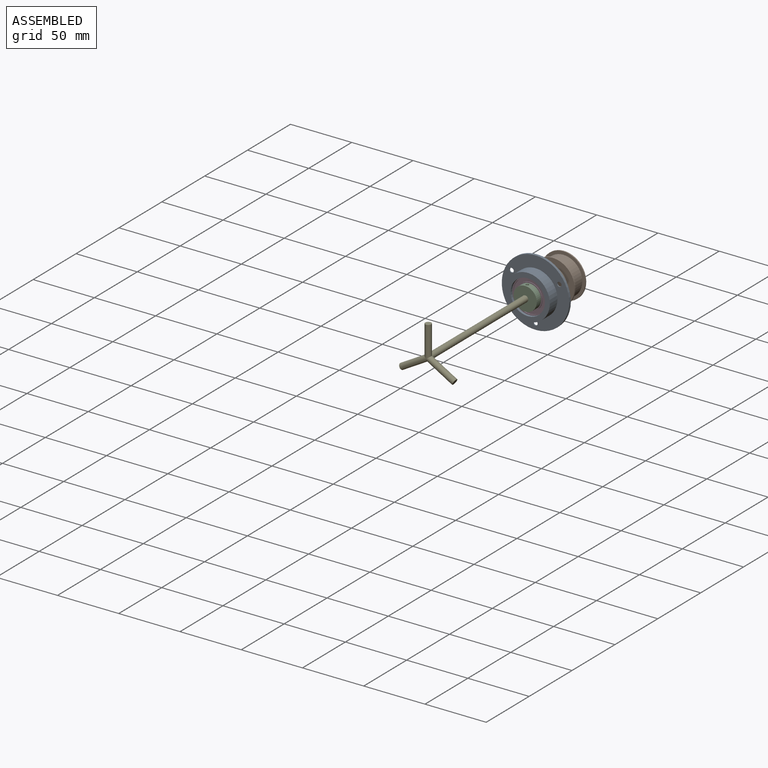
[diagram: assembled view]
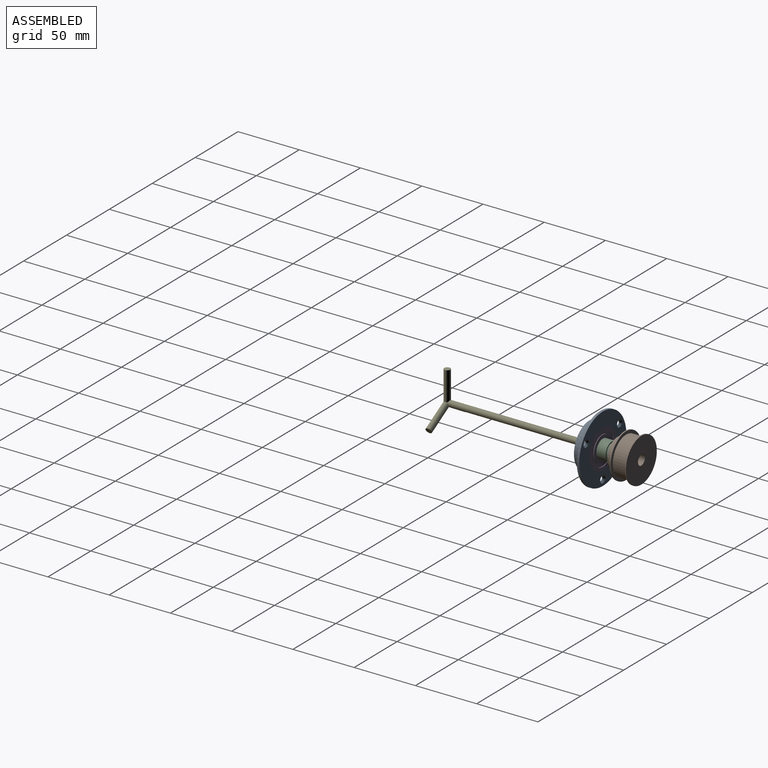
[diagram: assembled view, second angle]
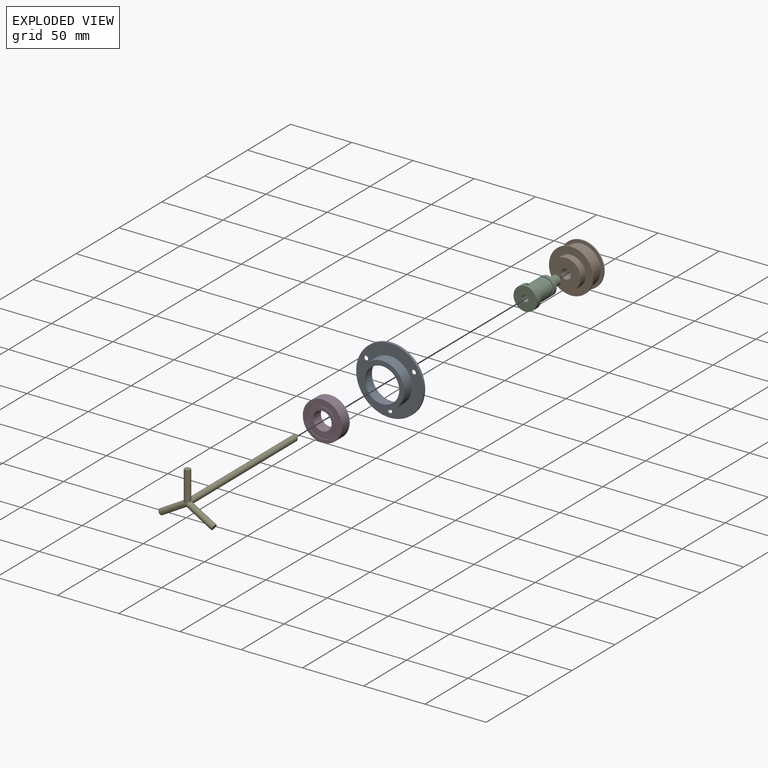
[diagram: exploded view]
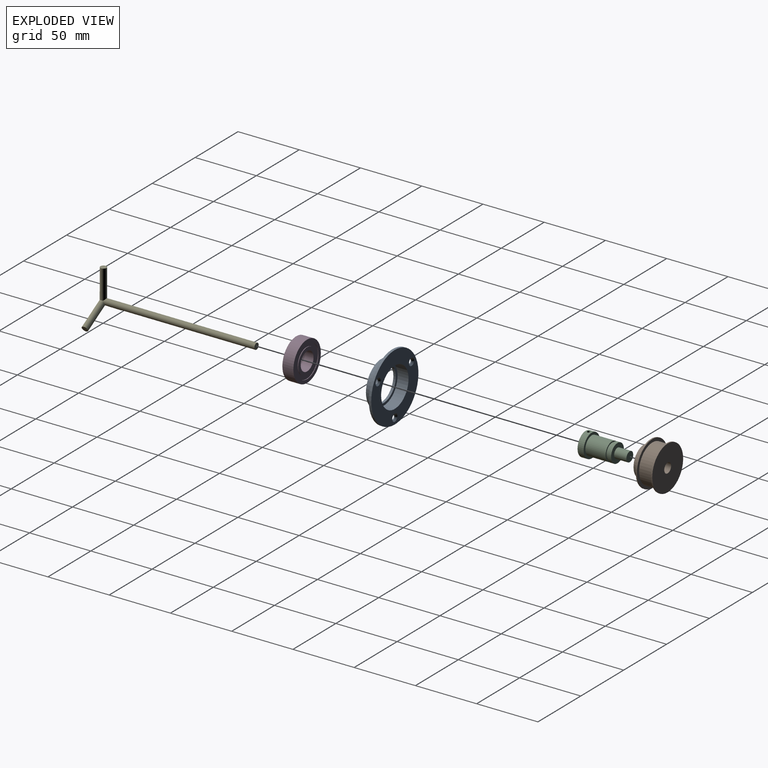
[diagram: exploded view, second angle]
ASSEMBLY  parts=5 mates=4
PART A: 14 faces, bbox 55x55x11 mm
  f0: cylinder r=16mm len=32mm, axis (0,0,1), area 904.8mm2, adj f3,f5
  f1: cylinder r=18mm len=36mm, axis (0,0,1), area 1017.9mm2, adj f4,f7
  f2: cylinder r=27.5mm len=55mm, axis (0,0,-1), area 345.6mm2, adj f3,f4
  f3: plane 55x55mm, normal (0,0,1), area 1486.8mm2, adj f0,f2,f9,f11,f13
  f4: plane 55x55mm, normal (0,0,-1), area 1329.1mm2, adj f1,f2,f8,f10,f12
  f5: plane 32x32mm, normal (0,0,1), area 188.5mm2, adj f0,f6
  f6: cylinder r=14mm len=28mm, axis (0,0,1), area 175.9mm2, adj f5,f7
  f7: plane 36x36mm, normal (0,0,-1), area 402.1mm2, adj f1,f6
  f8: cylinder r=1.75mm len=3.5mm, axis (0,0,1), area 8.2mm2, adj f4,f9
  f9: cone r=1.75mm half-angle=45deg, axis (0,0,1), area 26.4mm2, adj f3,f8
  f10: cylinder r=1.75mm len=3.5mm, axis (0,0,1), area 8.2mm2, adj f4,f11
  f11: cone r=1.75mm half-angle=45deg, axis (0,0,1), area 26.4mm2, adj f3,f10
  f12: cylinder r=1.75mm len=3.5mm, axis (0,0,1), area 8.2mm2, adj f4,f13
  f13: cone r=1.75mm half-angle=45deg, axis (0,0,1), area 26.4mm2, adj f3,f12
PART B: 10 faces, bbox 36x36x19.5 mm
  f0: cylinder r=15.5mm len=31mm, axis (0,0,-1), area 1120mm2, adj f3,f6
  f1: cylinder r=18mm len=36mm, axis (0,0,-1), area 113.1mm2, adj f2,f3
  f2: plane 36x36mm, normal (0,0,1), area 967.6mm2, adj f1,f9
  f3: plane 36x36mm, normal (0,0,-1), area 263.1mm2, adj f0,f1
  f4: cylinder r=18mm len=36mm, axis (0,0,1), area 113.1mm2, adj f5,f6
  f5: plane 36x36mm, normal (0,0,-1), area 565.5mm2, adj f4,f7
  f6: plane 36x36mm, normal (0,0,1), area 263.1mm2, adj f0,f4
  f7: cylinder r=12mm len=24mm, axis (0,0,1), area 452.4mm2, adj f5,f8
  f8: plane 24x24mm, normal (0,0,-1), area 402.1mm2, adj f7,f9
  f9: cylinder r=4mm len=19.5mm, axis (0,0,-1), area 490.1mm2, adj f2,f8
PART C: 14 faces, bbox 19x19x36 mm
  f0: cylinder r=7.5mm len=16.5mm, axis (0,0,-1), area 777.5mm2, adj f3,f9
  f1: cylinder r=9.5mm len=19mm, axis (0,0,-1), area 293.5mm2, adj f3,f4,f6
  f2: cylinder r=2.5mm len=12mm, axis (0,0,-1), area 183.4mm2, adj f4,f5,f6
  f3: plane 19x19mm, normal (0,0,1), area 106.8mm2, adj f0,f1
  f4: plane 19x19mm, normal (0,0,-1), area 263.9mm2, adj f1,f2
  f5: cone r=0mm half-angle=59deg, axis (0,0,-1), area 22.9mm2, adj f2
  f6: cylinder r=1.25mm len=7.34mm, axis (0,1,0), area 55.9mm2, adj f1,f2
  f7: cylinder r=6.5mm len=13mm, axis (0,0,-1), area 61.3mm2, adj f8,f9
  f8: plane 15x15mm, normal (0,0,-1), area 44mm2, adj f7,f13
  f9: plane 15x15mm, normal (0,0,1), area 44mm2, adj f0,f7
  f10: plane 8x8mm, normal (0,0,1), area 50.3mm2, adj f11
  f11: cylinder r=4mm len=10mm, axis (0,0,-1), area 251.3mm2, adj f10,f12
  f12: plane 15x15mm, normal (0,0,1), area 126.4mm2, adj f11,f13
  f13: cylinder r=7.5mm len=15mm, axis (0,0,-1), area 141.4mm2, adj f8,f12
PART D: 12 faces, bbox 32.4x9.4x32.4 mm
  f0: cylinder r=13.17mm len=26.33mm, axis (0,-1,0), area 41.4mm2, adj f1,f2
  f1: plane 32x32mm, normal (0,1,0), area 259.1mm2, adj f0,f3
  f2: plane 26.64x26.64mm, normal (0,1,0), area 209.4mm2, adj f0,f4
  f3: cylinder r=16mm len=32mm, axis (0,1,0), area 904.8mm2, adj f1,f5
  f4: cylinder r=10.33mm len=20.67mm, axis (0,1,0), area 32.5mm2, adj f2,f6
  f5: plane 32.39x32.39mm, normal (0,-1,0), area 260mm2, adj f3,f7
  f6: plane 20.89x20.89mm, normal (0,1,0), area 158.8mm2, adj f4,f8
  f7: cylinder r=13.17mm len=26.33mm, axis (0,-1,0), area 41.4mm2, adj f5,f9
  f8: cylinder r=7.5mm len=15mm, axis (0,-1,0), area 424.1mm2, adj f6,f10
  f9: plane 26.64x26.64mm, normal (0,-1,0), area 209.4mm2, adj f7,f11
  f10: plane 20.97x20.97mm, normal (0,-1,0), area 158.5mm2, adj f8,f11
  f11: cylinder r=10.33mm len=20.67mm, axis (0,1,0), area 32.5mm2, adj f9,f10
PART E: 8 faces, bbox 45.8x39.7x127.5 mm
  f0: cylinder r=2.5mm len=25mm, axis (0,1,0), area 371mm2, adj f1,f2,f3,f4
  f1: plane 5x5mm, normal (0,-1,0), area 19.6mm2, adj f0
  f2: cylinder r=2.5mm len=123.75mm, axis (0,0,-1), area 1931mm2, adj f0,f3,f4,f7
  f3: cylinder r=2.5mm len=24.15mm, axis (-0.87,-0.5,0), area 371mm2, adj f0,f2,f4,f5
  f4: cylinder r=2.5mm len=24.15mm, axis (0.87,-0.5,0), area 371mm2, adj f0,f2,f3,f6
  f5: plane 5x4.33mm, normal (0.87,0.5,0), area 19.6mm2, adj f3
  f6: plane 5x4.33mm, normal (-0.87,0.5,0), area 19.6mm2, adj f4
  f7: plane 5x5mm, normal (0,0,1), area 19.6mm2, adj f2
PLACE A rot(axis=(-1,0,0),90deg) t=(24.11,22.83,19.17)mm
PLACE B rot(axis=(-1,0,0),90deg) t=(24.11,43.83,19.17)mm
PLACE C rot(axis=(-1,0,0),90deg) t=(24.11,10.83,19.17)mm
PLACE D t=(24.11,15.83,19.17)mm
PLACE E rot(axis=(-1,0,0),90deg) t=(24.11,-102.17,19.17)mm
MATE fastened A.f6 <-> D.f3  axis (0,1,0) through (24.11,15.83,19.17)mm
MATE revolute C.f0 <-> D.f8  axis (0,-1,0) through (24.11,15.83,19.17)mm
MATE fastened B.f0 <-> C.f0  axis (0,-1,0) through (24.11,36.83,19.17)mm
MATE fastened E.f2 <-> C.f0  axis (0,1,0) through (24.11,22.83,19.17)mm
